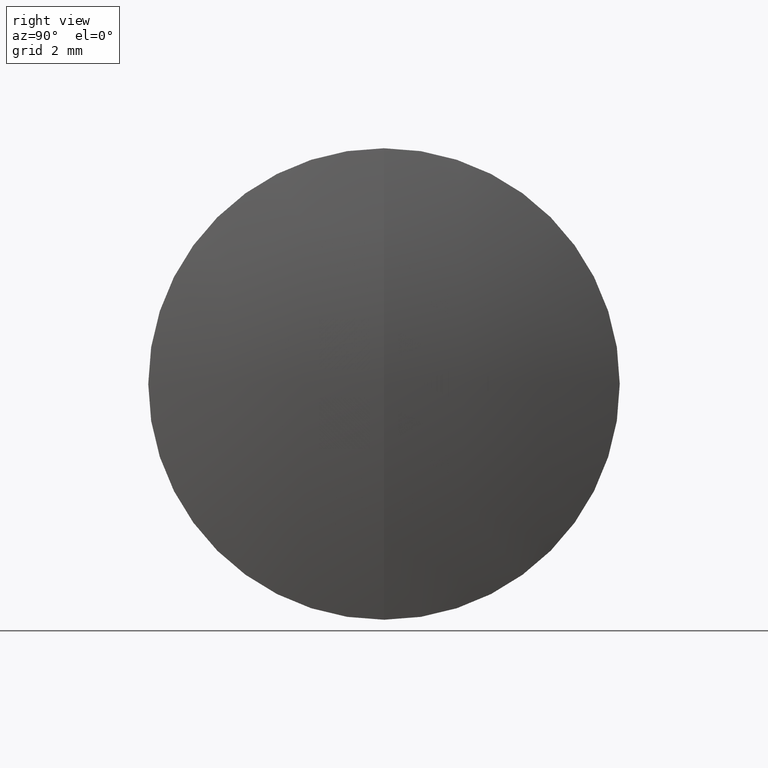
[diagram: clean part render]
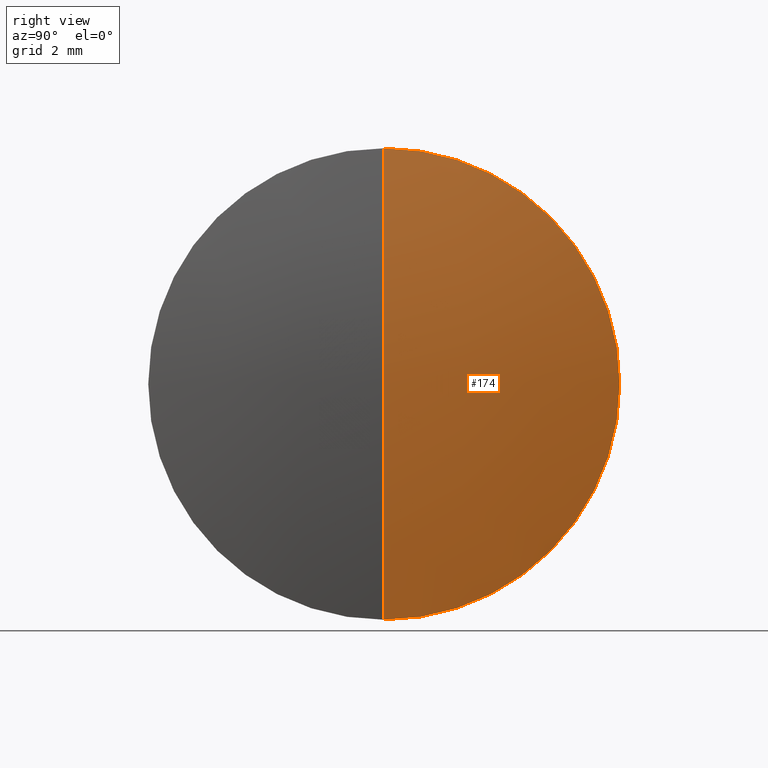
[diagram: same view with one face highlighted and labeled with its STEP entity id]
A machine part, right view. The second image highlights one B-rep face of the part: STEP entity #174.
In plain terms, the highlighted spherical surface has radius 18.869 mm.
Its self-contained STEP definition (entity closure, byte-faithful):
#1 = VERTEX_POINT ( 'NONE', #6 ) ;
#6 = CARTESIAN_POINT ( 'NONE',  ( 2.356824329195886100, 0.0000000000000000000, 1.155393022655570300E-015 ) ) ;
#25 = EDGE_CURVE ( 'NONE', #118, #207, #69, .T. ) ;
#34 = ORIENTED_EDGE ( 'NONE', *, *, #189, .T. ) ;
#55 = CIRCLE ( 'NONE', #326, 18.86900000000000000 ) ;
#69 = CIRCLE ( 'NONE', #289, 4.000000000000000000 ) ;
#85 = CARTESIAN_POINT ( 'NONE',  ( -16.51217567080411500, 0.0000000000000000000, 0.0000000000000000000 ) ) ;
#91 = CARTESIAN_POINT ( 'NONE',  ( -16.51217567080411500, 0.0000000000000000000, 0.0000000000000000000 ) ) ;
#106 = CIRCLE ( 'NONE', #159, 18.86900000000000000 ) ;
#118 = VERTEX_POINT ( 'NONE', #259 ) ;
#129 = FACE_OUTER_BOUND ( 'NONE', #308, .T. ) ;
#130 = CARTESIAN_POINT ( 'NONE',  ( 1.927975114913448800, 0.0000000000000000000, 0.0000000000000000000 ) ) ;
#138 = DIRECTION ( 'NONE',  ( -0.0000000000000000000, 1.000000000000000000, 1.224646799147353200E-016 ) ) ;
#141 = DIRECTION ( 'NONE',  ( 0.0000000000000000000, 1.000000000000000000, 0.0000000000000000000 ) ) ;
#143 = CARTESIAN_POINT ( 'NONE',  ( -16.51217567080411500, 0.0000000000000000000, 0.0000000000000000000 ) ) ;
#159 = AXIS2_PLACEMENT_3D ( 'NONE', #91, #317, #293 ) ;
#166 = DIRECTION ( 'NONE',  ( 0.0000000000000000000, 0.0000000000000000000, 1.000000000000000000 ) ) ;
#174 = ADVANCED_FACE ( 'NONE', ( #129 ), #269, .T. ) ;
#184 = DIRECTION ( 'NONE',  ( 0.0000000000000000000, -1.224646799147353200E-016, 1.000000000000000000 ) ) ;
#187 = CARTESIAN_POINT ( 'NONE',  ( 1.927975114913448800, 4.898587196589413800E-016, -4.000000000000000000 ) ) ;
#188 = DIRECTION ( 'NONE',  ( 0.0000000000000000000, 0.0000000000000000000, 1.000000000000000000 ) ) ;
#189 = EDGE_CURVE ( 'NONE', #1, #207, #55, .T. ) ;
#202 = ORIENTED_EDGE ( 'NONE', *, *, #25, .F. ) ;
#207 = VERTEX_POINT ( 'NONE', #187 ) ;
#253 = ORIENTED_EDGE ( 'NONE', *, *, #307, .F. ) ;
#259 = CARTESIAN_POINT ( 'NONE',  ( 1.927975114913448800, 0.0000000000000000000, 4.000000000000000000 ) ) ;
#269 = SPHERICAL_SURFACE ( 'NONE', #316, 18.86900000000000000 ) ;
#289 = AXIS2_PLACEMENT_3D ( 'NONE', #130, #290, #188 ) ;
#290 = DIRECTION ( 'NONE',  ( -1.000000000000000000, -0.0000000000000000000, -0.0000000000000000000 ) ) ;
#293 = DIRECTION ( 'NONE',  ( 0.0000000000000000000, 0.0000000000000000000, -1.000000000000000000 ) ) ;
#307 = EDGE_CURVE ( 'NONE', #1, #118, #106, .T. ) ;
#308 = EDGE_LOOP ( 'NONE', ( #253, #34, #202 ) ) ;
#316 = AXIS2_PLACEMENT_3D ( 'NONE', #85, #141, #166 ) ;
#317 = DIRECTION ( 'NONE',  ( 0.0000000000000000000, -1.000000000000000000, 0.0000000000000000000 ) ) ;
#326 = AXIS2_PLACEMENT_3D ( 'NONE', #143, #138, #184 ) ;